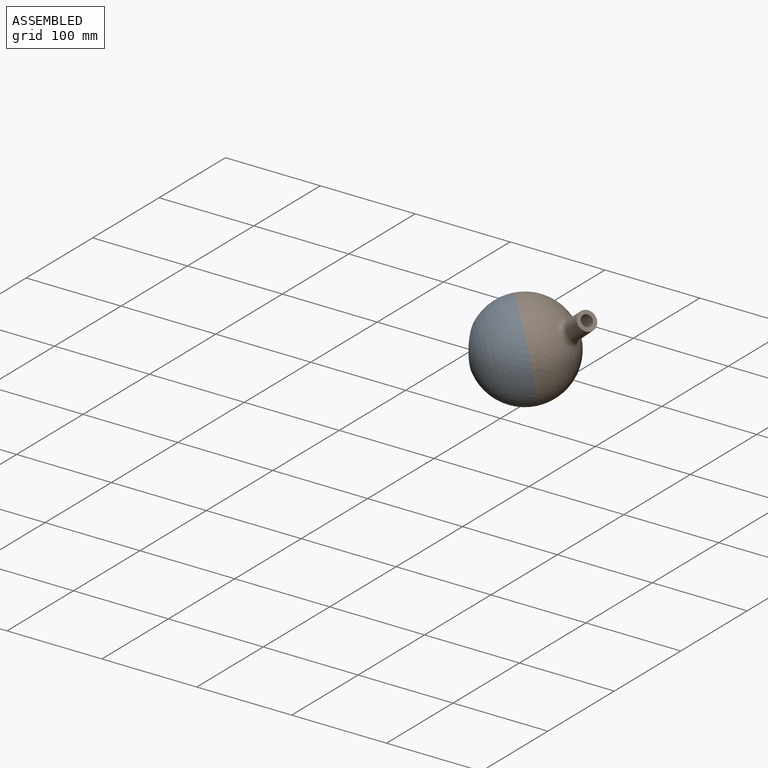
[diagram: assembled view]
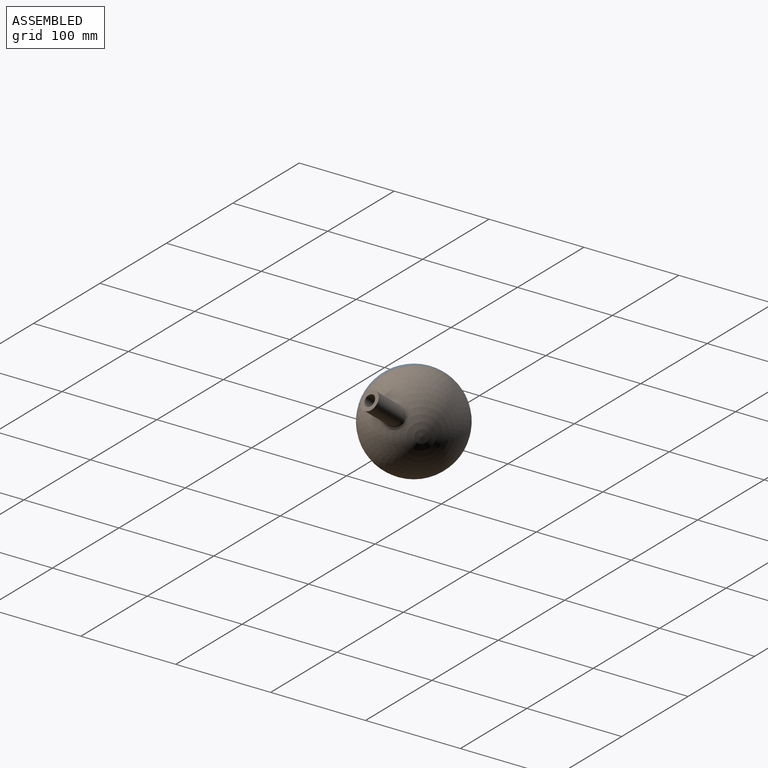
[diagram: assembled view, second angle]
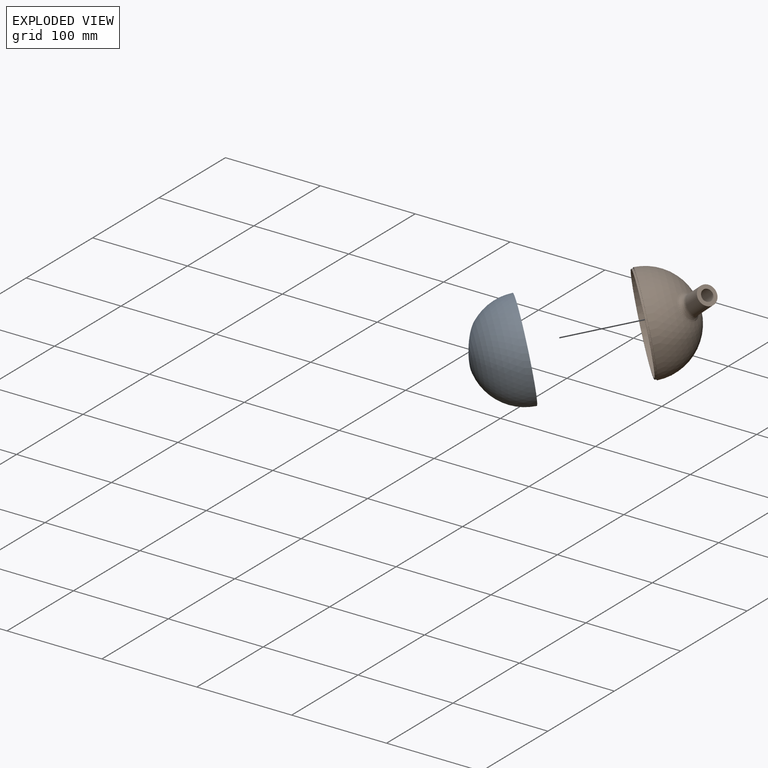
[diagram: exploded view]
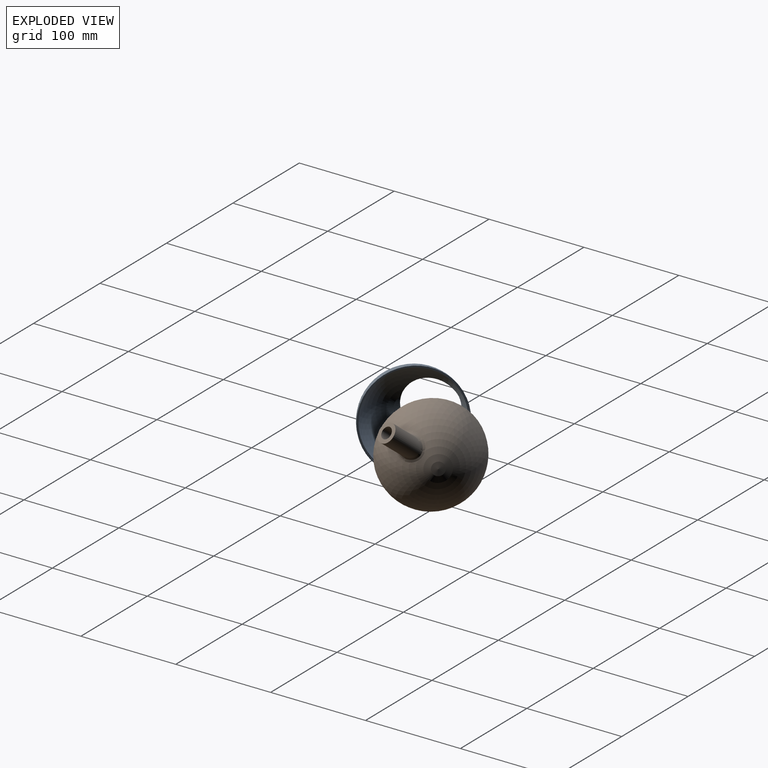
[diagram: exploded view, second angle]
ASSEMBLY  parts=2 mates=2
PART A: 6 faces, bbox 100x100x49.8 mm
  f0: sphere r=50mm, area 13278.3mm2, adj f2,f5
  f1: sphere r=48mm, area 11358mm2, adj f4,f5
  f2: plane 100x100mm, normal (0,0,-1), area 311mm2, adj f0,f3
  f3: cylinder r=49mm len=98mm, axis (0,0,-1), area 615.8mm2, adj f2,f4
  f4: plane 98x98mm, normal (0,0,-1), area 317.3mm2, adj f1,f3
  f5: cylinder r=25mm len=50mm, axis (0,0,-1), area 476.4mm2, adj f0,f1
PART B: 12 faces, bbox 112.4x100x65.5 mm
  f0: sphere r=50mm, area 15050.5mm2, adj f1,f11
  f1: plane 100x100mm, normal (0,0,-1), area 311mm2, adj f0,f5
  f2: cylinder r=10mm len=41.1mm, axis (0.89,0,0.46), area 1800mm2, adj f3,f11
  f3: plane 20x17.8mm, normal (0.89,0,0.46), area 201.1mm2, adj f2,f10
  f4: cylinder r=47.5mm len=95mm, axis (0,0,1), area 596.9mm2, adj f6,f9
  f5: cylinder r=49mm len=98mm, axis (0,0,1), area 615.8mm2, adj f1,f6
  f6: plane 98x98mm, normal (0,0,-1), area 454.7mm2, adj f4,f5
  f7: plane 15x13.35mm, normal (-0.89,0,-0.46), area 63.6mm2, adj f8,f10
  f8: cylinder r=7.5mm len=39.65mm, axis (0.89,0,0.46), area 1541.3mm2, adj f7,f9
  f9: sphere r=47.5mm, area 13974.6mm2, adj f4,f8
  f10: cylinder r=6mm len=12mm, axis (0.89,0,0.46), area 94.2mm2, adj f3,f7
  f11: bspline ~27.28x25.64mm, area 484.1mm2, adj f0,f2
PLACE A rot(axis=(0.44,-0.87,0.22),103.1deg) t=(-22.14,25.4,2.52)mm
PLACE B rot(axis=(-0.78,0.06,-0.63),112.1deg) t=(-22.14,25.4,2.52)mm
MATE cylindrical B.f4 <-> A.f3  axis (-0.72,-0.67,-0.17) through (-23.58,24.05,2.19)mm
MATE planar A.f3 <-> B.f4  axis (0.72,0.67,0.17) through (-23.58,24.05,2.19)mm
